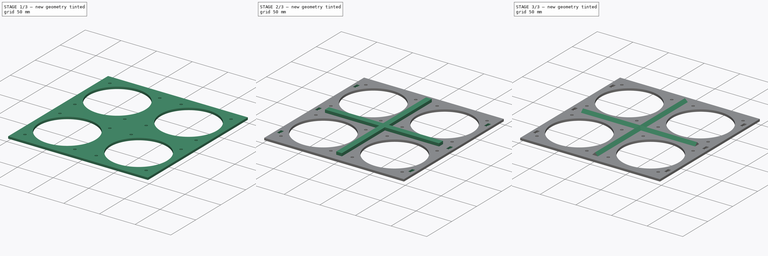
[diagram: build sequence overview — one tinted view per stage of 3, left to right]
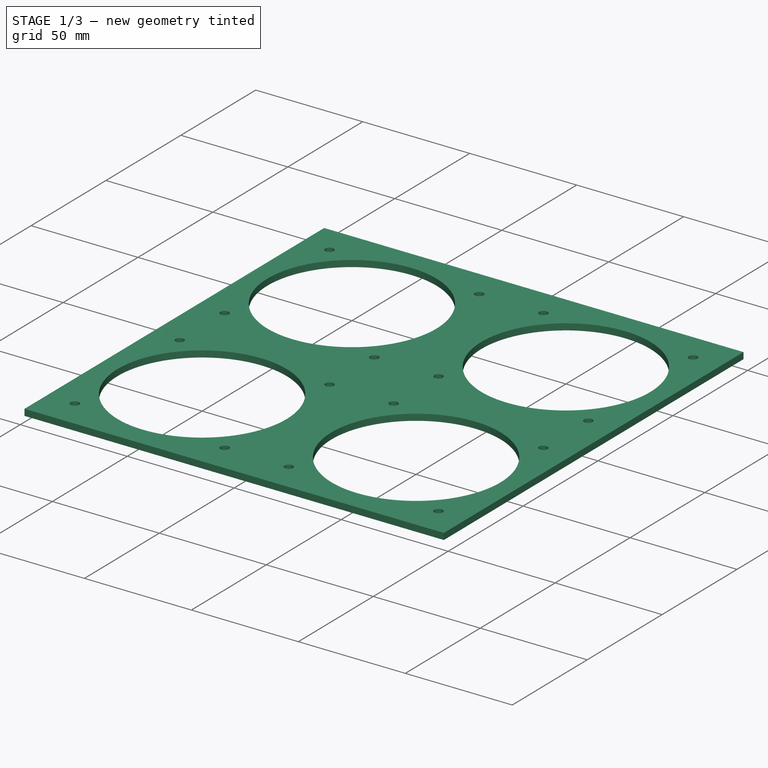
[diagram: stage 1 of 3 — iso view after this stage's code; geometry added in this stage tinted green]
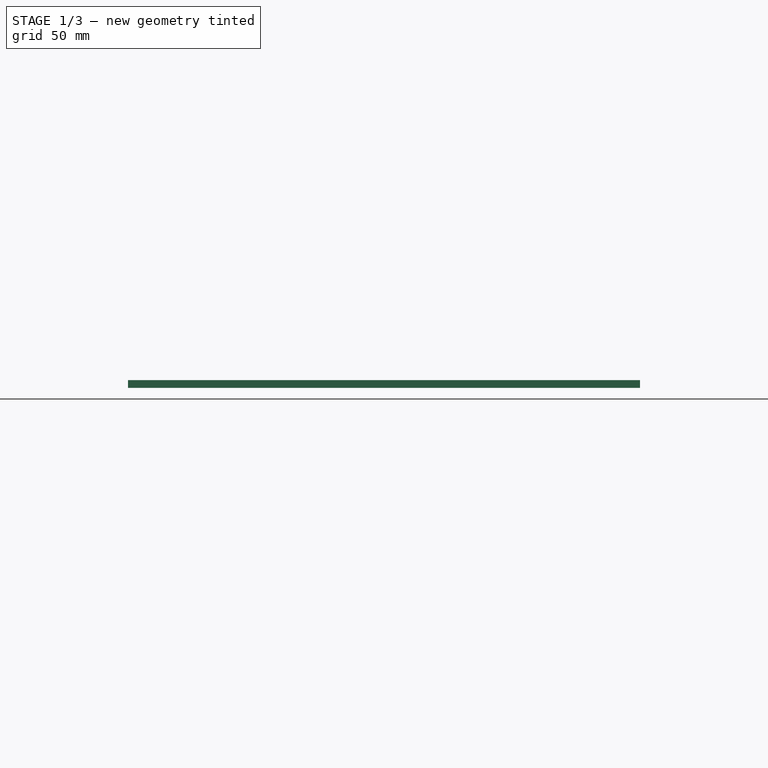
[diagram: stage 1 of 3 — front view after this stage's code; geometry added in this stage tinted green]
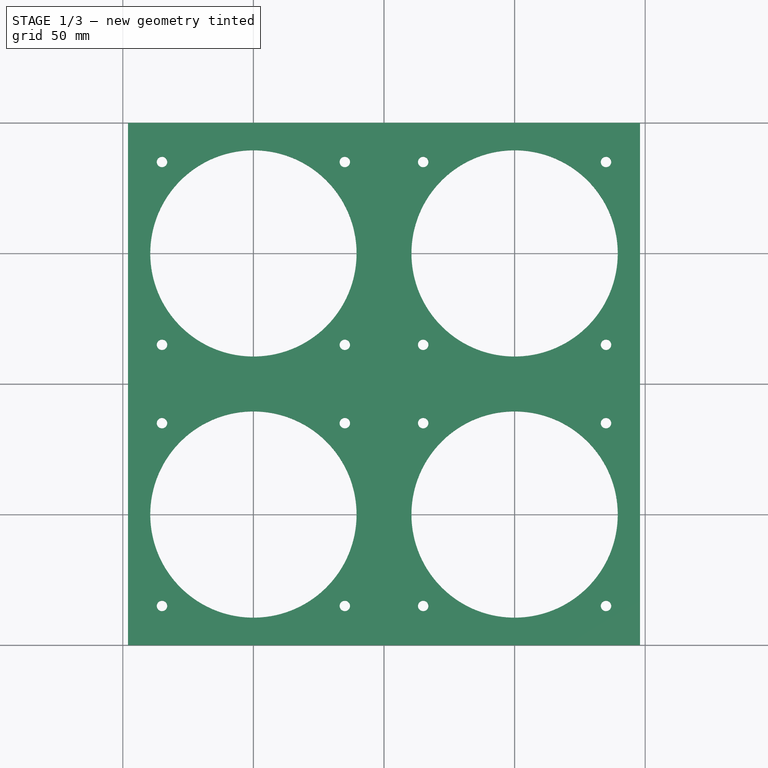
[diagram: stage 1 of 3 — top view after this stage's code; geometry added in this stage tinted green]
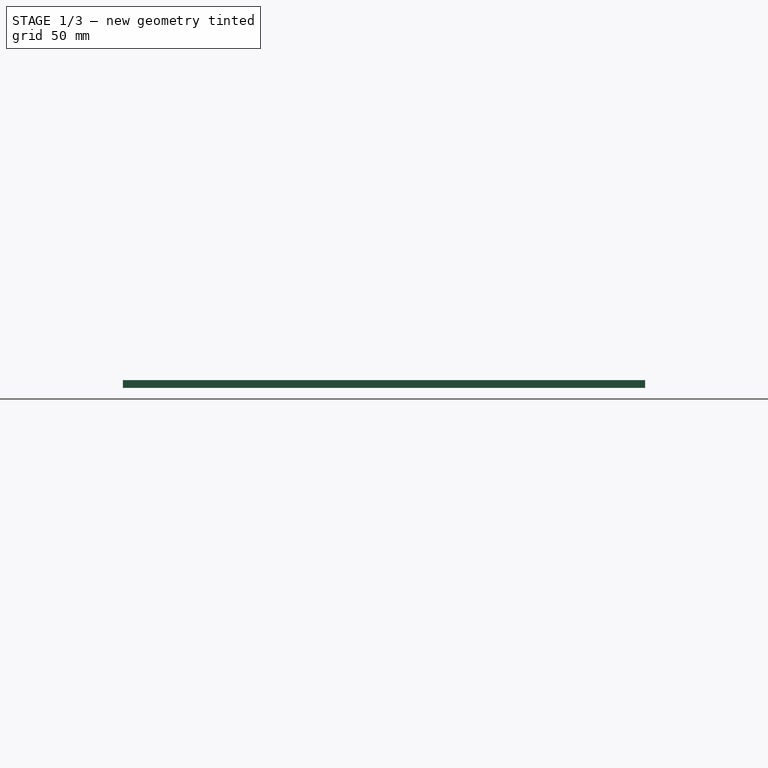
[diagram: stage 1 of 3 — right view after this stage's code; geometry added in this stage tinted green]
FCSTD DOCUMENT  (FreeCAD 0.19R19180 (Git))
Label: fan_holder
License: All rights reserved
LicenseURL: http://en.wikipedia.org/wiki/All_rights_reserved
objects: Sketcher::SketchObject×5, PartDesign::Pad×3, PartDesign::Pocket×2, PartDesign::Chamfer×2, PartDesign::Body×1
note: 18 computed .brp shape members not serialized (recipe doc carries the construction recipe); baked Part::Feature solids carry a one-line shape summary decoded from their .brp

FEATURE [Sketcher::SketchObject] Sketch
  MapMode = 5
  Support = -> [XY_Plane]
  sketch-geometry (4):
    g0: LineSegment StartX=-98 StartY=100 StartZ=0 EndX=98 EndY=100 EndZ=0
    g1: LineSegment StartX=98 StartY=100 StartZ=0 EndX=98 EndY=-100 EndZ=0
    g2: LineSegment StartX=98 StartY=-100 StartZ=0 EndX=-98 EndY=-100 EndZ=0
    g3: LineSegment StartX=-98 StartY=-100 StartZ=0 EndX=-98 EndY=100 EndZ=0
  constraints (12):
    c: Coincident(g0,g1)
    c: Coincident(g1,g2)
    c: Coincident(g2,g3)
    c: Coincident(g3,g0)
    c: Horizontal(g0)
    c: Horizontal(g2)
    c: Vertical(g1)
    c: Vertical(g3)
    c: DistanceX(g0,g0) = 196
    c: DistanceY(g3,g3) = 200
    c: DistanceY(g-1,g0) = 100
    c: DistanceX(g0,g-1) = 98
FEATURE [PartDesign::Pad] Pad
  Length = 3
  Length2 = 100
  Profile = -> Sketch
  Type = 0
FEATURE [Sketcher::SketchObject] Sketch001
  MapMode = 5
  Placement = pos=(0,0,3) rot=(0,0,1;0rad)
  Support = -> [Pad]
  sketch-geometry (20):
    g0: Circle CenterX=-50 CenterY=50 CenterZ=0 NormalX=0 NormalY=0 NormalZ=1 AngleXU=0 Radius=39.5
    g1: Circle CenterX=50 CenterY=50 CenterZ=0 NormalX=0 NormalY=0 NormalZ=1 AngleXU=0 Radius=39.5
    g2: Circle CenterX=50 CenterY=-50 CenterZ=0 NormalX=0 NormalY=0 NormalZ=1 AngleXU=0 Radius=39.5
    g3: Circle CenterX=-50 CenterY=-50 CenterZ=0 NormalX=0 NormalY=0 NormalZ=1 AngleXU=0 Radius=39.5
    g4: Circle CenterX=-85 CenterY=85 CenterZ=0 NormalX=0 NormalY=0 NormalZ=1 AngleXU=0 Radius=2
    g5: Circle CenterX=-15 CenterY=85 CenterZ=0 NormalX=0 NormalY=0 NormalZ=1 AngleXU=0 Radius=2
    g6: Circle CenterX=-85 CenterY=15 CenterZ=0 NormalX=0 NormalY=0 NormalZ=1 AngleXU=0 Radius=2
    g7: Circle CenterX=-15 CenterY=15 CenterZ=0 NormalX=0 NormalY=0 NormalZ=1 AngleXU=0 Radius=2
    g8: Circle CenterX=15 CenterY=15 CenterZ=0 NormalX=0 NormalY=0 NormalZ=1 AngleXU=0 Radius=2
    g9: Circle CenterX=15 CenterY=85 CenterZ=0 NormalX=0 NormalY=0 NormalZ=1 AngleXU=0 Radius=2
    g10: Circle CenterX=85 CenterY=85 CenterZ=0 NormalX=0 NormalY=0 NormalZ=1 AngleXU=0 Radius=2
    g11: Circle CenterX=85 CenterY=15 CenterZ=0 NormalX=0 NormalY=0 NormalZ=1 AngleXU=0 Radius=2
    g12: Circle CenterX=85 CenterY=-15 CenterZ=0 NormalX=0 NormalY=0 NormalZ=1 AngleXU=0 Radius=2
    g13: Circle CenterX=15 CenterY=-15 CenterZ=0 NormalX=0 NormalY=0 NormalZ=1 AngleXU=0 Radius=2
    g14: Circle CenterX=15 CenterY=-85 CenterZ=0 NormalX=0 NormalY=0 NormalZ=1 AngleXU=0 Radius=2
    g15: Circle CenterX=85 CenterY=-85 CenterZ=0 NormalX=0 NormalY=0 NormalZ=1 AngleXU=0 Radius=2
    g16: Circle CenterX=-15 CenterY=-85 CenterZ=0 NormalX=0 NormalY=0 NormalZ=1 AngleXU=0 Radius=2
    g17: Circle CenterX=-85 CenterY=-15 CenterZ=0 NormalX=0 NormalY=0 NormalZ=1 AngleXU=0 Radius=2
    g18: Circle CenterX=-15 CenterY=-15 CenterZ=0 NormalX=0 NormalY=0 NormalZ=1 AngleXU=0 Radius=2
    g19: Circle CenterX=-85 CenterY=-85 CenterZ=0 NormalX=0 NormalY=0 NormalZ=1 AngleXU=0 Radius=2
  constraints (54):
    c: Diameter(g3) = 79
    c: Equal(g3,g0)
    c: Equal(g3,g1)
    c: Equal(g3,g2)
    c: Horizontal(g2,g3)
    c: Horizontal(g1,g0)
    c: Vertical(g0,g3)
    c: Vertical(g1,g2)
    c: DistanceX(g0,g-1) = 50
    c: DistanceX(g-1,g1) = 50
    c: DistanceY(g-1,g0) = 50
    c: DistanceY(g3,g-1) = 50
    c: Diameter(g4) = 4
    c: Equal(g4,g5)
    c: Equal(g4,g7)
    c: Equal(g4,g6)
    c: Equal(g4,g9)
    c: Equal(g4,g8)
    c: Equal(g4, g10-g16) x7
    c: Equal(g4,g18)
    c: Equal(g4,g17)
    c: Equal(g4,g19)
    c: Horizontal(g7,g6)
    c: Horizontal(g6,g8)
    c: Horizontal(g8,g11)
    c: Horizontal(g4,g5)
    c: Horizontal(g5,g9)
    c: Horizontal(g9,g10)
    c: Horizontal(g17,g18)
    c: Horizontal(g18,g13)
    c: Horizontal(g13,g12)
    c: Horizontal(g19,g16)
    c: Horizontal(g16,g14)
    c: Horizontal(g14,g15)
    c: Vertical(g4,g6)
    c: Vertical(g6,g17)
    c: Vertical(g17,g19)
    c: Vertical(g16,g18)
    c: Vertical(g18,g7)
    c: Vertical(g7,g5)
    c: Vertical(g9,g8)
    c: Vertical(g8,g13)
    c: Vertical(g13,g14)
    c: Vertical(g15,g12)
    c: Vertical(g12,g11)
    c: Vertical(g11,g10)
    c: DistanceX(g1,g10) = 35
    c: DistanceX(g9,g1) = 35
    c: DistanceX(g0,g7) = 35
    c: DistanceX(g6,g0) = 35
    c: DistanceY(g19,g3) = 35
    c: DistanceY(g3,g17) = 35
    c: DistanceY(g6,g0) = 35
    c: DistanceY(g0,g4) = 35
FEATURE [PartDesign::Pocket] Pocket
  BaseFeature = -> Pad
  Length = 5
  Length2 = 100
  Profile = -> Sketch001
  Type = 0
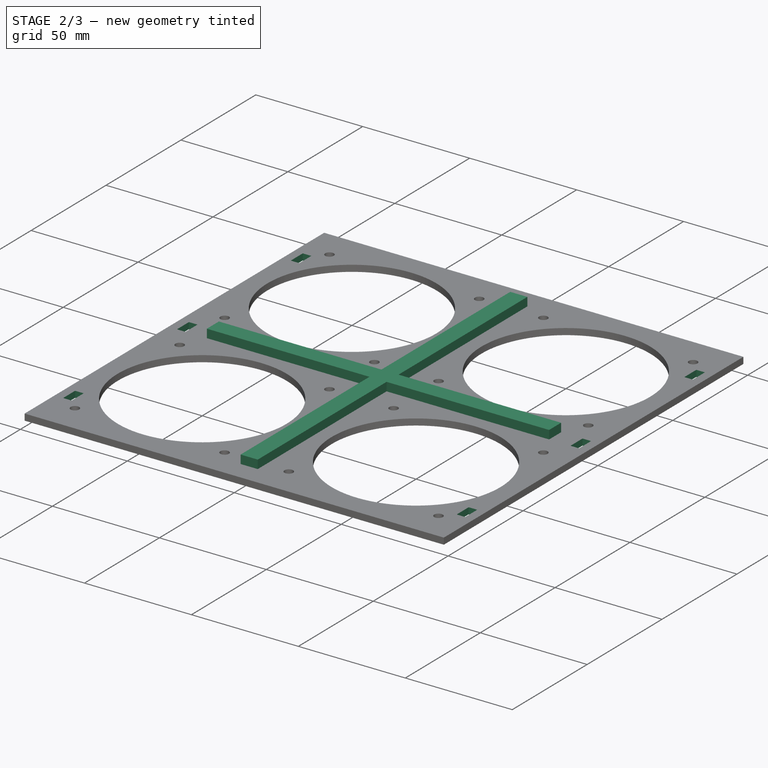
[diagram: stage 2 of 3 — iso view after this stage's code; geometry added in this stage tinted green]
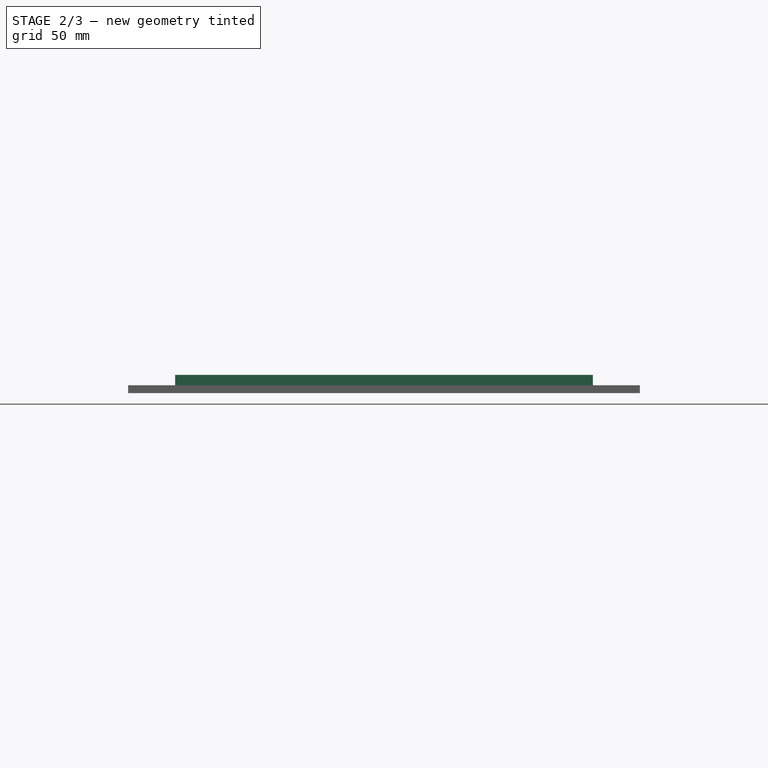
[diagram: stage 2 of 3 — front view after this stage's code; geometry added in this stage tinted green]
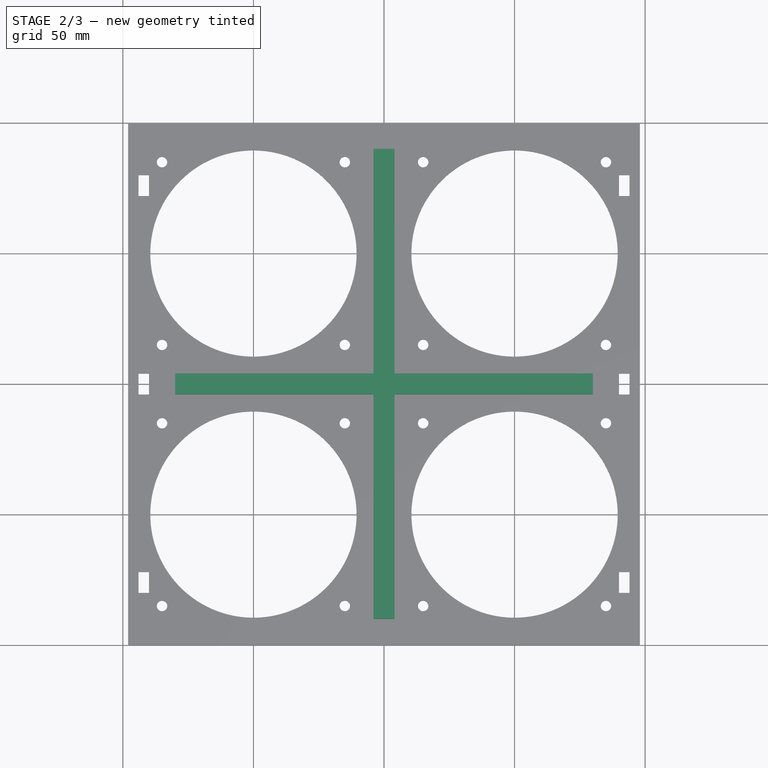
[diagram: stage 2 of 3 — top view after this stage's code; geometry added in this stage tinted green]
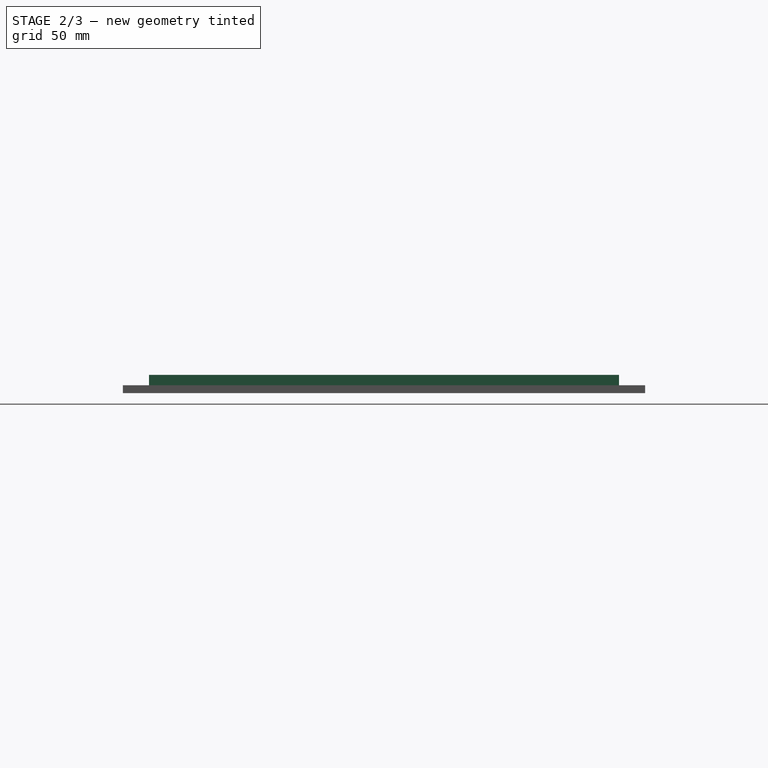
[diagram: stage 2 of 3 — right view after this stage's code; geometry added in this stage tinted green]
FEATURE [Sketcher::SketchObject] Sketch002
  ExternalGeometry = -> [Pocket]
  MapMode = 5
  Placement = pos=(0,0,3) rot=(0,0,1;0rad)
  Support = -> [Pocket]
  sketch-geometry (24):
    g0: LineSegment StartX=90 StartY=80 StartZ=0 EndX=94 EndY=80 EndZ=0
    g1: LineSegment StartX=94 StartY=80 StartZ=0 EndX=94 EndY=72 EndZ=0
    g2: LineSegment StartX=94 StartY=72 StartZ=0 EndX=90 EndY=72 EndZ=0
    g3: LineSegment StartX=90 StartY=72 StartZ=0 EndX=90 EndY=80 EndZ=0
    g4: LineSegment StartX=90 StartY=-72 StartZ=0 EndX=94 EndY=-72 EndZ=0
    g5: LineSegment StartX=94 StartY=-72 StartZ=0 EndX=94 EndY=-80 EndZ=0
    g6: LineSegment StartX=94 StartY=-80 StartZ=0 EndX=90 EndY=-80 EndZ=0
    g7: LineSegment StartX=90 StartY=-80 StartZ=0 EndX=90 EndY=-72 EndZ=0
    g8: LineSegment StartX=90 StartY=4 StartZ=0 EndX=94 EndY=4 EndZ=0
    g9: LineSegment StartX=94 StartY=4 StartZ=0 EndX=94 EndY=-4 EndZ=0
    g10: LineSegment StartX=94 StartY=-4 StartZ=0 EndX=90 EndY=-4 EndZ=0
    g11: LineSegment StartX=90 StartY=-4 StartZ=0 EndX=90 EndY=4 EndZ=0
    g12: LineSegment StartX=-94 StartY=4 StartZ=0 EndX=-90 EndY=4 EndZ=0
    g13: LineSegment StartX=-90 StartY=4 StartZ=0 EndX=-90 EndY=-4 EndZ=0
    g14: LineSegment StartX=-90 StartY=-4 StartZ=0 EndX=-94 EndY=-4 EndZ=0
    g15: LineSegment StartX=-94 StartY=-4 StartZ=0 EndX=-94 EndY=4 EndZ=0
    g16: LineSegment StartX=-94 StartY=80 StartZ=0 EndX=-90 EndY=80 EndZ=0
    g17: LineSegment StartX=-90 StartY=80 StartZ=0 EndX=-90 EndY=72 EndZ=0
    g18: LineSegment StartX=-90 StartY=72 StartZ=0 EndX=-94 EndY=72 EndZ=0
    g19: LineSegment StartX=-94 StartY=72 StartZ=0 EndX=-94 EndY=80 EndZ=0
    g20: LineSegment StartX=-94 StartY=-72 StartZ=0 EndX=-90 EndY=-72 EndZ=0
    g21: LineSegment StartX=-90 StartY=-72 StartZ=0 EndX=-90 EndY=-80 EndZ=0
    g22: LineSegment StartX=-90 StartY=-80 StartZ=0 EndX=-94 EndY=-80 EndZ=0
    g23: LineSegment StartX=-94 StartY=-80 StartZ=0 EndX=-94 EndY=-72 EndZ=0
  constraints (72):
    c: Coincident(g0,g1)
    c: Coincident(g1,g2)
    c: Coincident(g2,g3)
    c: Coincident(g3,g0)
    c: Horizontal(g0)
    c: Horizontal(g2)
    c: Vertical(g1)
    c: Vertical(g3)
    c: Coincident(g4,g5)
    c: Coincident(g5,g6)
    c: Coincident(g6,g7)
    c: Coincident(g7,g4)
    c: Horizontal(g4)
    c: Horizontal(g6)
    c: Vertical(g5)
    c: Vertical(g7)
    c: Coincident(g8,g9)
    c: Coincident(g9,g10)
    c: Coincident(g10,g11)
    c: Coincident(g11,g8)
    c: Horizontal(g8)
    c: Horizontal(g10)
    c: Vertical(g9)
    c: Vertical(g11)
    c: Coincident(g12,g13)
    c: Coincident(g13,g14)
    c: Coincident(g14,g15)
    c: Coincident(g15,g12)
    c: Horizontal(g12)
    c: Horizontal(g14)
    c: Vertical(g13)
    c: Vertical(g15)
    c: Coincident(g16,g17)
    c: Coincident(g17,g18)
    c: Coincident(g18,g19)
    c: Coincident(g19,g16)
    c: Horizontal(g16)
    c: Horizontal(g18)
    c: Vertical(g17)
    c: Vertical(g19)
    c: Coincident(g20,g21)
    c: Coincident(g21,g22)
    c: Coincident(g22,g23)
    c: Coincident(g23,g20)
    c: Horizontal(g20)
    c: Horizontal(g22)
    c: Vertical(g21)
    c: Vertical(g23)
    c: Equal(g5,g9)
    c: Equal(g9,g1)
    c: Equal(g1,g19)
    c: Equal(g19,g15)
    c: Equal(g15,g23)
    c: Equal(g4,g8)
    c: Equal(g8,g0)
    c: Equal(g0,g16)
    c: Equal(g16,g12)
    c: Equal(g12,g20)
    c: DistanceY(g23,g23) = 8
    c: DistanceX(g20,g20) = 4
    c: Horizontal(g21,g6)
    c: Horizontal(g14,g10)
    c: Horizontal(g18,g2)
    c: Vertical(g12,g16)
    c: Vertical(g16,g20)
    c: Vertical(g4,g8)
    c: Vertical(g8,g0)
    c: DistanceY(g13,g-1) = 4
    c: DistanceX(g-3,g18) = 4
    c: DistanceY(g16,g-3) = 20
    c: DistanceX(g0,g-4) = 4
    c: DistanceY(g-5,g5) = 20
FEATURE [PartDesign::Pocket] Pocket001
  BaseFeature = -> Pocket
  Length = 5
  Length2 = 100
  Profile = -> Sketch002
  Type = 0
FEATURE [Sketcher::SketchObject] Sketch003
  MapMode = 5
  Placement = pos=(0,0,3) rot=(0,0,1;0rad)
  Support = -> [Pocket001]
  sketch-geometry (4):
    g0: LineSegment StartX=-4 StartY=90 StartZ=0 EndX=4 EndY=90 EndZ=0
    g1: LineSegment StartX=4 StartY=90 StartZ=0 EndX=4 EndY=-90 EndZ=0
    g2: LineSegment StartX=4 StartY=-90 StartZ=0 EndX=-4 EndY=-90 EndZ=0
    g3: LineSegment StartX=-4 StartY=-90 StartZ=0 EndX=-4 EndY=90 EndZ=0
  constraints (11):
    c: Coincident(g0,g1)
    c: Coincident(g1,g2)
    c: Coincident(g2,g3)
    c: Coincident(g3,g0)
    c: Horizontal(g0)
    c: Horizontal(g2)
    c: Vertical(g1)
    c: Vertical(g3)
    c: DistanceY(g1,g1) = 180
    c: DistanceY(g-1,g0) = 90
    c: DistanceX(g2,g-1) = 4
FEATURE [PartDesign::Pad] Pad001
  BaseFeature = -> Pocket001
  Length = 4
  Length2 = 100
  Profile = -> Sketch003
  Type = 0
FEATURE [Sketcher::SketchObject] Sketch004
  MapMode = 5
  Placement = pos=(0,0,3) rot=(0,0,1;0rad)
  Support = -> [Pad001]
  sketch-geometry (4):
    g0: LineSegment StartX=-80 StartY=4 StartZ=0 EndX=80 EndY=4 EndZ=0
    g1: LineSegment StartX=80 StartY=4 StartZ=0 EndX=80 EndY=-4 EndZ=0
    g2: LineSegment StartX=80 StartY=-4 StartZ=0 EndX=-80 EndY=-4 EndZ=0
    g3: LineSegment StartX=-80 StartY=-4 StartZ=0 EndX=-80 EndY=4 EndZ=0
  constraints (12):
    c: Coincident(g0,g1)
    c: Coincident(g1,g2)
    c: Coincident(g2,g3)
    c: Coincident(g3,g0)
    c: Horizontal(g0)
    c: Horizontal(g2)
    c: Vertical(g1)
    c: Vertical(g3)
    c: DistanceY(g1,g1) = 8
    c: DistanceX(g0,g0) = 160
    c: DistanceX(g0,g-1) = 80
    c: DistanceY(g-1,g0) = 4
FEATURE [PartDesign::Pad] Pad002
  BaseFeature = -> Pad001
  Length = 4
  Length2 = 100
  Profile = -> Sketch004
  Type = 0
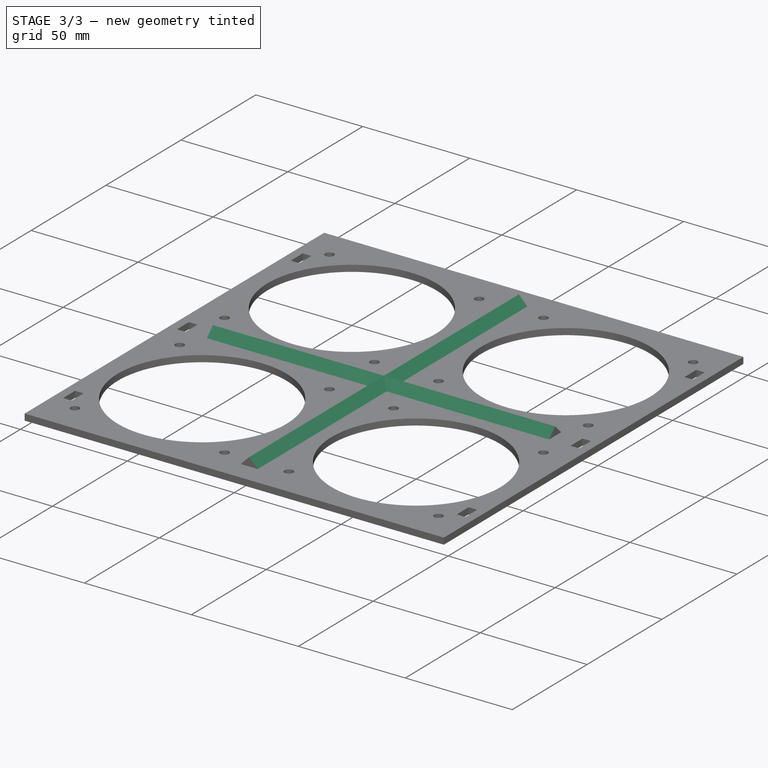
[diagram: stage 3 of 3 — iso view after this stage's code; geometry added in this stage tinted green]
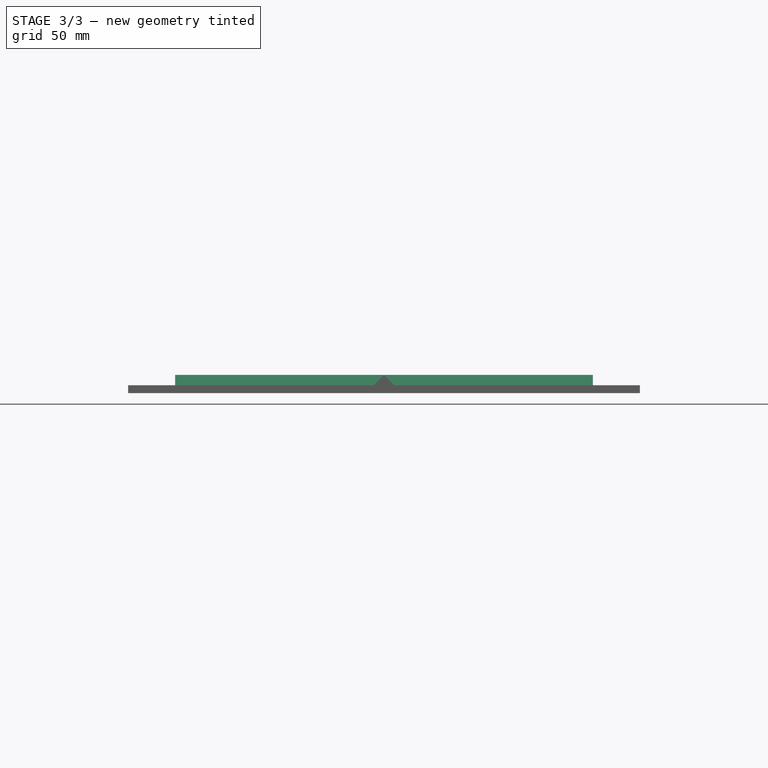
[diagram: stage 3 of 3 — front view after this stage's code; geometry added in this stage tinted green]
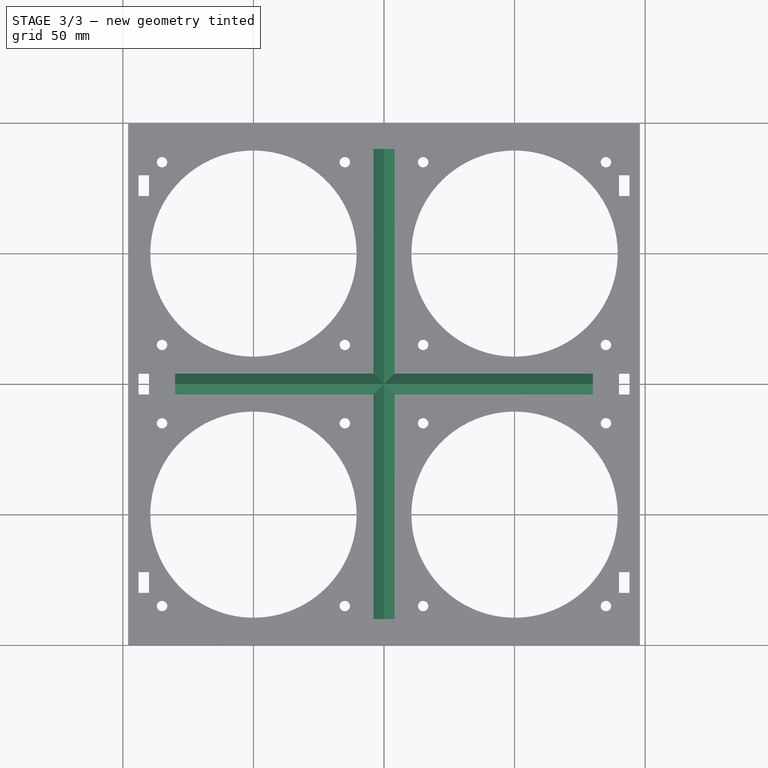
[diagram: stage 3 of 3 — top view after this stage's code; geometry added in this stage tinted green]
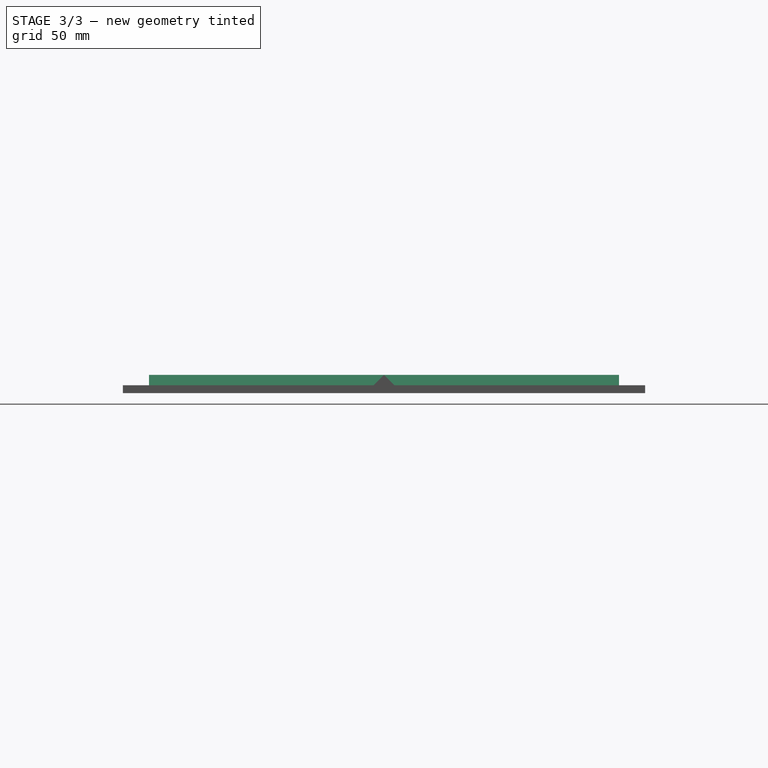
[diagram: stage 3 of 3 — right view after this stage's code; geometry added in this stage tinted green]
FEATURE [PartDesign::Chamfer] Chamfer
  Base = -> Pad002 [Edge175,Edge179,Edge163,Edge167]
  BaseFeature = -> Pad002
  Size = 3.99
FEATURE [PartDesign::Chamfer] Chamfer001
  Base = -> Chamfer [Edge75,Edge4,Edge153,Edge158]
  BaseFeature = -> Chamfer
  Size = 3.99
FEATURE [PartDesign::Body] Body
  Group = -> [Sketch,Pad,Sketch001,Pocket,Sketch002,Pocket001,Sketch003,Pad001,Sketch004,Pad002,Chamfer,Chamfer001]
  Origin = -> Origin
  Tip = -> Chamfer001
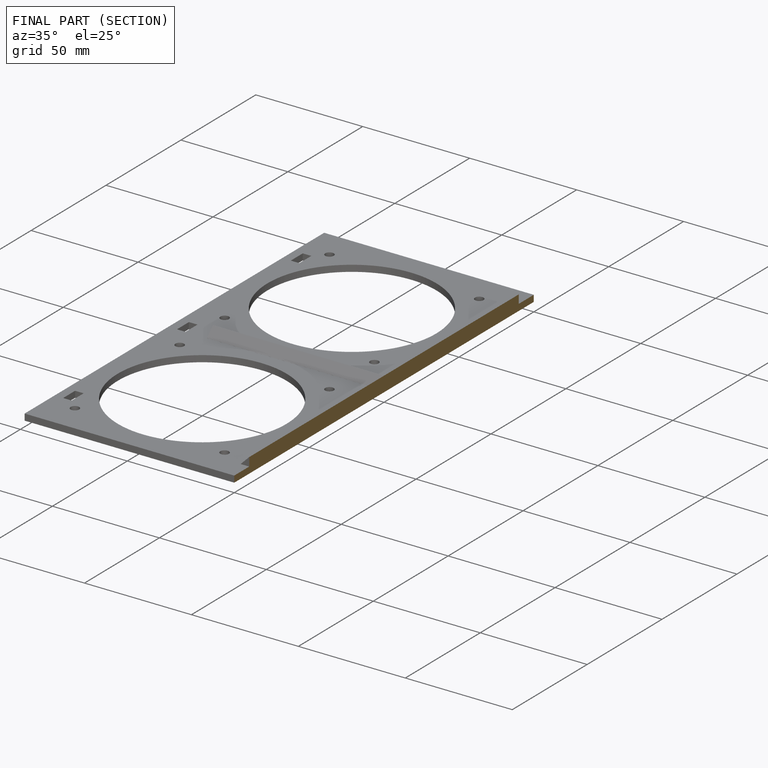
[diagram: finished part — half-section view (interior)]
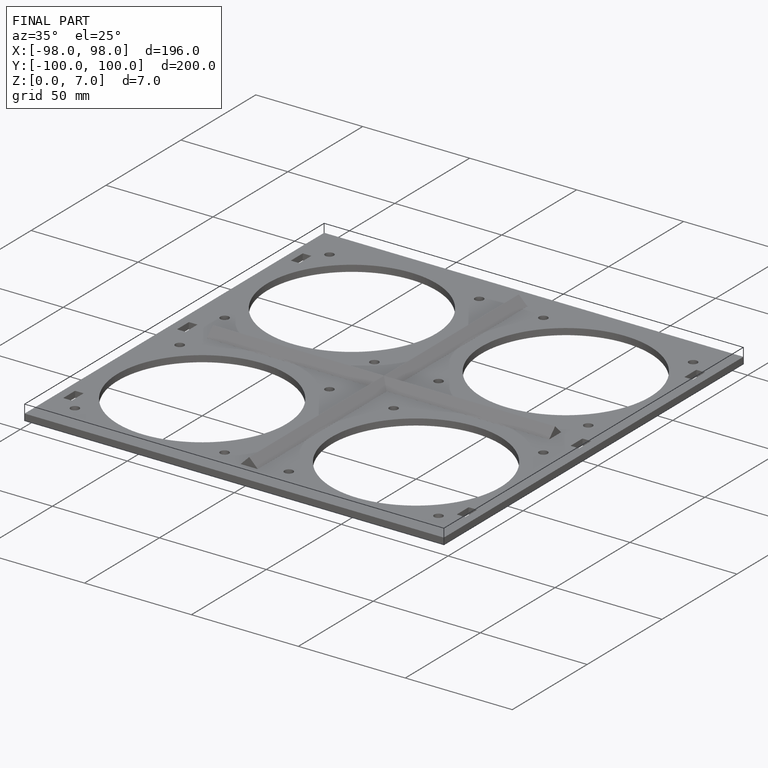
[diagram: finished part — iso view with bounding-box wireframe]
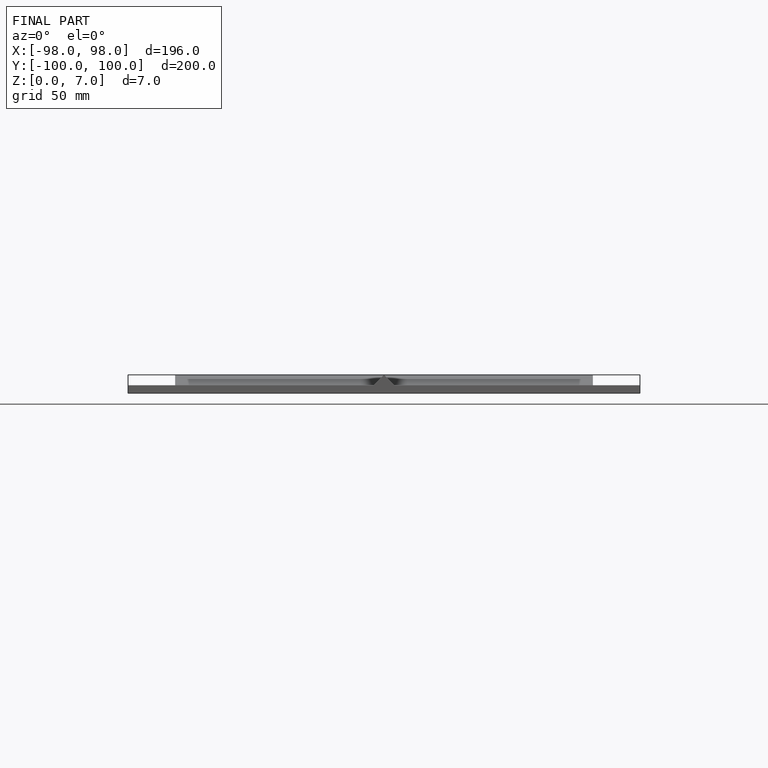
[diagram: finished part — front view with bounding-box wireframe]
